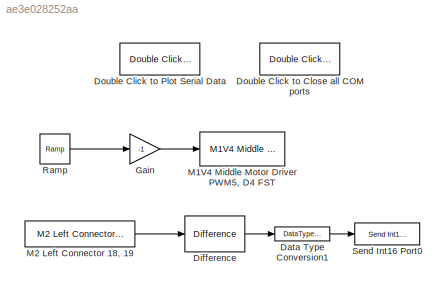
MODEL slx_ae3e028252aa
KIND model
CONFIG AbsTol = auto
CONFIG FixedStep = auto
CONFIG MaxStep = auto
CONFIG MinStep = auto
CONFIG RelTol = 1e-3
CONFIG SampleTimeConstraint = Unconstrained
CONFIG Solver = ode45
CONFIG SolverMode = Auto
CONFIG SolverName = ode45
CONFIG StartTime = 0.0
CONFIG StopTime = 10.0
BLOCK [DataTypeConversion] Data Type Conversion1
  OutDataTypeStr = int16
  RndMeth = Floor
  SaturateOnIntegerOverflow = off
BLOCK [Reference] Difference  REF=simulink/Discrete/Difference
  DoSatur = off
  ICPrevInput = 0.0
  InputProcessing = Inherited
  LockScale = off
  OutDataType = fixdt(1, 16)
  OutDataTypeStr = Inherit: Inherit via internal rule
  OutMax = []
  OutMin = []
  OutScaling = 2^-10
  OutputDataTypeScalingMode = Inherit via internal rule
  Ports = [1, 1]
  RndMeth = Floor
  SourceBlock = simulink/Discrete/Difference
  SourceType = Difference
BLOCK [Reference] Double Click to Close all COM ports  REF=RASPlib/Double Click to
Close all COM ports
  Ports = []
  SourceBlock = RASPlib/Double Click to\nClose all COM ports
BLOCK [Reference] Double Click to Plot Serial Data  REF=RASPlib/Double Click to
Plot Serial Data
  BaudRate = 9600
  COMport = 89
  DataType = int16
  Ncx = 1
  NumSamples = 500
  Ports = []
  SourceBlock = RASPlib/Double Click to\nPlot Serial Data
BLOCK [Gain] Gain
  Gain = -1
  OutDataTypeStr = Inherit: Inherit via internal rule
  ParamDataTypeStr = Inherit: Inherit via internal rule
  SaturateOnIntegerOverflow = off
BLOCK [Reference] M1V4  Middle Motor Driver PWM5, D4 FST  REF=MinSegLibrary_M1V4/M1V4  Middle Motor Driver
PWM5, D4 FST
  Ports = [1]
  SourceBlock = MinSegLibrary_M1V4/M1V4  Middle Motor Driver\nPWM5, D4 FST
  SourceType = Motor Driver
  Vsupply = 3.25
BLOCK [Reference] M2 Left Connector 18, 19  REF=MinSegLibrary_MinSegMega/M2 Left Connector 18, 19
  Encoder = 1
  PinA = 19
  PinB = 18
  Ports = [0, 1]
  SourceBlock = MinSegLibrary_MinSegMega/M2 Left Connector 18, 19
  SourceType = Encoder_arduino
BLOCK [Reference] Ramp  REF=simulink/Sources/Ramp
  Ports = [0, 1]
  SourceBlock = simulink/Sources/Ramp
  SourceType = Ramp
  VectorParams1D = on
  X0 = 0
  slope = .1
  start = 0
BLOCK [Reference] Send Int16 Port0  REF=RASPlib/Send Int16 Port0
  Ports = [1]
  SourceBlock = RASPlib/Send Int16 Port0
  SourceType = SubSystem
LINE Data Type Conversion1:1 -> Send Int16 Port0:1
LINE Difference:1 -> Data Type Conversion1:1
LINE Gain:1 -> M1V4  Middle Motor Driver PWM5, D4 FST:1
LINE M2 Left Connector 18, 19:1 -> Difference:1
LINE Ramp:1 -> Gain:1
